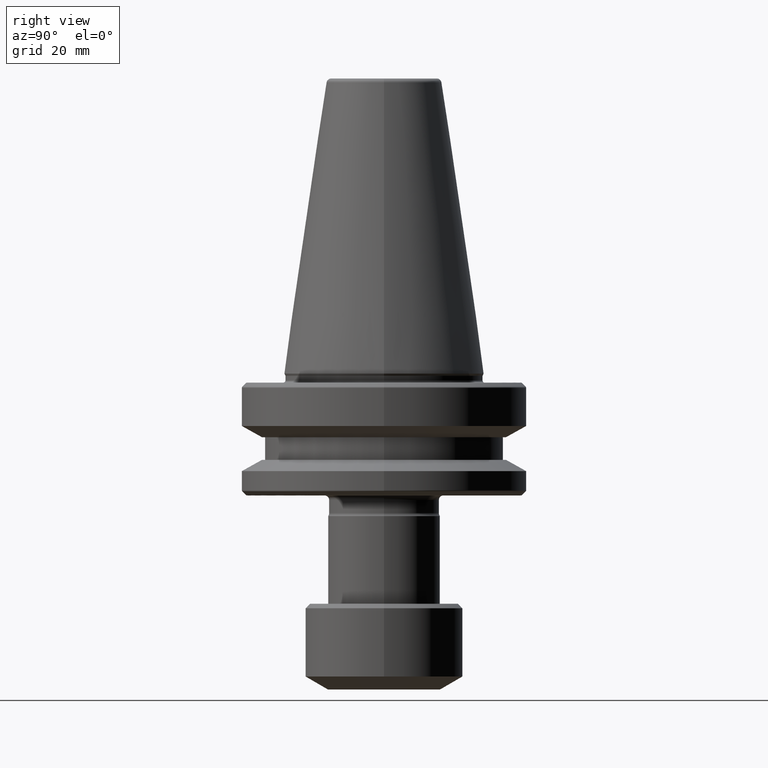
[diagram: clean part render]
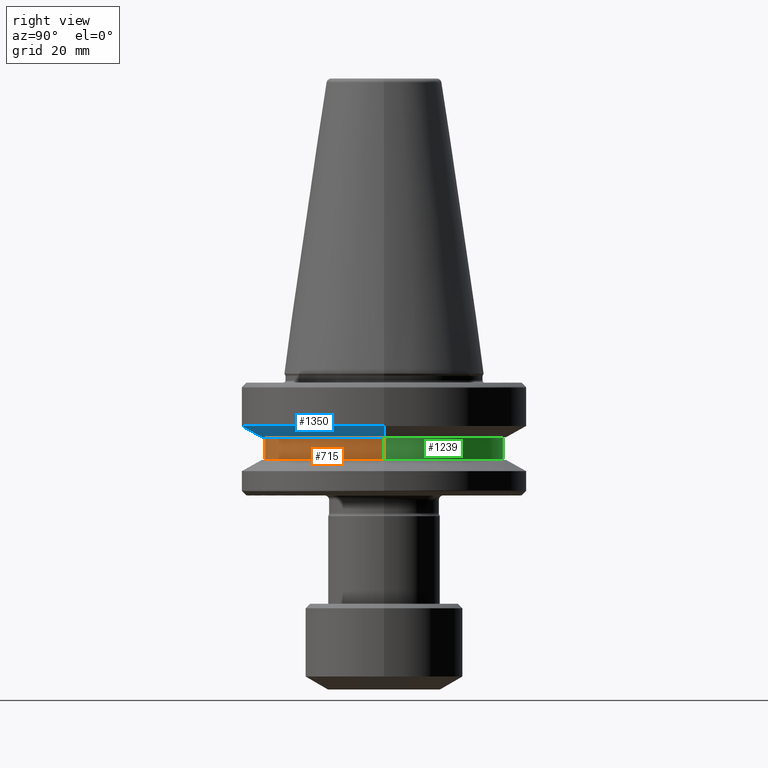
[diagram: same view with three faces highlighted in distinct colors, each labeled with its STEP entity id]
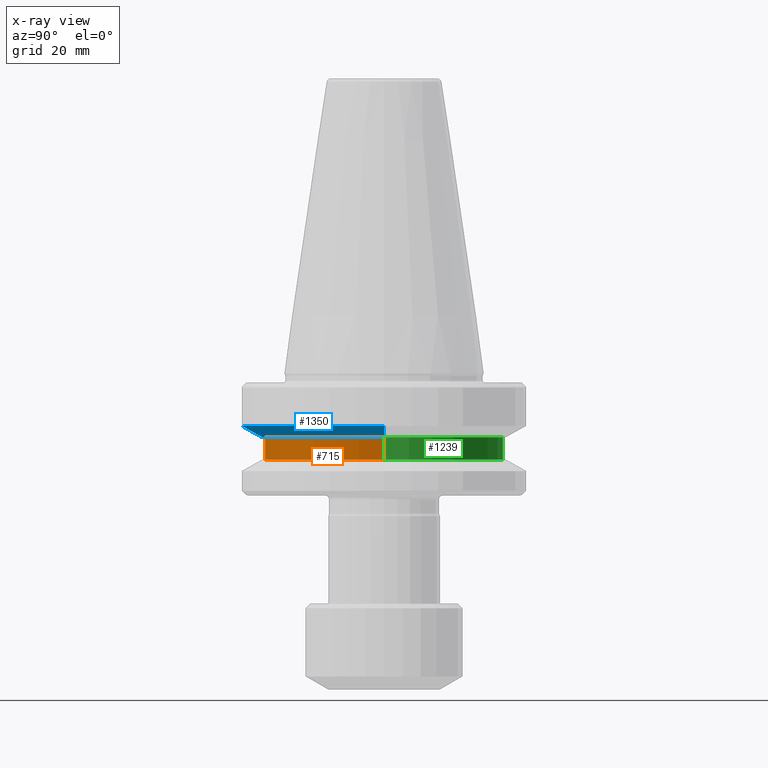
[diagram: x-ray of the same camera — body ghosted, the three highlighted faces saturated]
A machine part, right view with three faces highlighted in distinct colors.
The next image is the same camera in x-ray (body ghosted, the three faces saturated) — at least one of them is partly hidden behind the body in this view.
Their STEP definitions:

[orange] entity #715 — the highlighted cylindrical surface (partial cylindrical patch) has radius 26.5 mm, axis along (-0, -0, 1).
#52 = VERTEX_POINT ( 'NONE', #479 ) ;
#63 = AXIS2_PLACEMENT_3D ( 'NONE', #952, #545, #848 ) ;
#113 = CIRCLE ( 'NONE', #557, 26.50000000000000000 ) ;
#171 = DIRECTION ( 'NONE',  ( -0.0000000000000000000, -0.0000000000000000000, 1.000000000000000000 ) ) ;
#194 = VERTEX_POINT ( 'NONE', #1137 ) ;
#207 = VECTOR ( 'NONE', #565, 1000.000000000000000 ) ;
#212 = CARTESIAN_POINT ( 'NONE',  ( -26.50000000000000000, 3.245314017740485800E-015, 69.75694866325665100 ) ) ;
#259 = ORIENTED_EDGE ( 'NONE', *, *, #1156, .F. ) ;
#322 = EDGE_CURVE ( 'NONE', #1174, #362, #113, .T. ) ;
#328 = ORIENTED_EDGE ( 'NONE', *, *, #378, .T. ) ;
#344 = EDGE_LOOP ( 'NONE', ( #259, #484, #328, #1327 ) ) ;
#362 = VERTEX_POINT ( 'NONE', #995 ) ;
#378 = EDGE_CURVE ( 'NONE', #52, #362, #925, .T. ) ;
#394 = DIRECTION ( 'NONE',  ( -0.0000000000000000000, -0.0000000000000000000, 1.000000000000000000 ) ) ;
#479 = CARTESIAN_POINT ( 'NONE',  ( 26.50000000000000000, 0.0000000000000000000, -19.10000000000000500 ) ) ;
#484 = ORIENTED_EDGE ( 'NONE', *, *, #1394, .T. ) ;
#545 = DIRECTION ( 'NONE',  ( -0.0000000000000000000, -0.0000000000000000000, 1.000000000000000000 ) ) ;
#557 = AXIS2_PLACEMENT_3D ( 'NONE', #948, #171, #762 ) ;
#565 = DIRECTION ( 'NONE',  ( -0.0000000000000000000, -0.0000000000000000000, 1.000000000000000000 ) ) ;
#679 = CYLINDRICAL_SURFACE ( 'NONE', #63, 26.50000000000000000 ) ;
#692 = FACE_OUTER_BOUND ( 'NONE', #344, .T. ) ;
#715 = ADVANCED_FACE ( 'NONE', ( #692 ), #679, .T. ) ;
#762 = DIRECTION ( 'NONE',  ( 1.000000000000000000, 0.0000000000000000000, 0.0000000000000000000 ) ) ;
#817 = CIRCLE ( 'NONE', #1482, 26.50000000000000000 ) ;
#848 = DIRECTION ( 'NONE',  ( 1.000000000000000000, 0.0000000000000000000, 0.0000000000000000000 ) ) ;
#925 = LINE ( 'NONE', #1265, #207 ) ;
#948 = CARTESIAN_POINT ( 'NONE',  ( 0.0000000000000000000, 0.0000000000000000000, -14.10000000000000100 ) ) ;
#952 = CARTESIAN_POINT ( 'NONE',  ( 0.0000000000000000000, 0.0000000000000000000, 69.75694866325665100 ) ) ;
#976 = CARTESIAN_POINT ( 'NONE',  ( -26.50000000000000000, 3.245314017740485800E-015, -14.10000000000000100 ) ) ;
#988 = LINE ( 'NONE', #212, #1393 ) ;
#995 = CARTESIAN_POINT ( 'NONE',  ( 26.50000000000000000, 0.0000000000000000000, -14.10000000000000100 ) ) ;
#1129 = CARTESIAN_POINT ( 'NONE',  ( 0.0000000000000000000, 0.0000000000000000000, -19.10000000000000500 ) ) ;
#1137 = CARTESIAN_POINT ( 'NONE',  ( -26.50000000000000000, 3.245314017740485800E-015, -19.10000000000000500 ) ) ;
#1156 = EDGE_CURVE ( 'NONE', #194, #1174, #988, .T. ) ;
#1174 = VERTEX_POINT ( 'NONE', #976 ) ;
#1235 = DIRECTION ( 'NONE',  ( 1.000000000000000000, 0.0000000000000000000, 0.0000000000000000000 ) ) ;
#1265 = CARTESIAN_POINT ( 'NONE',  ( 26.50000000000000000, 0.0000000000000000000, 69.75694866325665100 ) ) ;
#1298 = DIRECTION ( 'NONE',  ( -0.0000000000000000000, -0.0000000000000000000, 1.000000000000000000 ) ) ;
#1327 = ORIENTED_EDGE ( 'NONE', *, *, #322, .F. ) ;
#1393 = VECTOR ( 'NONE', #1298, 1000.000000000000000 ) ;
#1394 = EDGE_CURVE ( 'NONE', #194, #52, #817, .T. ) ;
#1482 = AXIS2_PLACEMENT_3D ( 'NONE', #1129, #394, #1235 ) ;

[blue] entity #1350 — the highlighted conical surface has half-angle 60 deg.
#22 = EDGE_CURVE ( 'NONE', #206, #421, #39, .T. ) ;
#39 = LINE ( 'NONE', #795, #526 ) ;
#141 = CARTESIAN_POINT ( 'NONE',  ( -31.50000000000000000, 3.857637417314162700E-015, -11.59985799368323700 ) ) ;
#153 = AXIS2_PLACEMENT_3D ( 'NONE', #250, #1127, #1410 ) ;
#162 = ORIENTED_EDGE ( 'NONE', *, *, #187, .T. ) ;
#187 = EDGE_CURVE ( 'NONE', #206, #530, #718, .T. ) ;
#206 = VERTEX_POINT ( 'NONE', #632 ) ;
#229 = ORIENTED_EDGE ( 'NONE', *, *, #22, .F. ) ;
#238 = ORIENTED_EDGE ( 'NONE', *, *, #763, .F. ) ;
#250 = CARTESIAN_POINT ( 'NONE',  ( 0.0000000000000000000, 0.0000000000000000000, -11.59985799368323700 ) ) ;
#266 = EDGE_CURVE ( 'NONE', #530, #619, #536, .T. ) ;
#421 = VERTEX_POINT ( 'NONE', #141 ) ;
#501 = DIRECTION ( 'NONE',  ( 1.000000000000000000, 0.0000000000000000000, 0.0000000000000000000 ) ) ;
#526 = VECTOR ( 'NONE', #614, 1000.000000000000100 ) ;
#530 = VERTEX_POINT ( 'NONE', #944 ) ;
#536 = LINE ( 'NONE', #1081, #1056 ) ;
#550 = EDGE_LOOP ( 'NONE', ( #229, #162, #1352, #238 ) ) ;
#614 = DIRECTION ( 'NONE',  ( -0.8660254037844393700, 1.060575238724907800E-016, 0.4999999999999985000 ) ) ;
#619 = VERTEX_POINT ( 'NONE', #644 ) ;
#632 = CARTESIAN_POINT ( 'NONE',  ( -27.16962701892216000, 3.592478546794604700E-015, -14.10000000000000100 ) ) ;
#644 = CARTESIAN_POINT ( 'NONE',  ( 31.50000000000000000, 0.0000000000000000000, -11.59985799368323700 ) ) ;
#678 = CIRCLE ( 'NONE', #153, 31.50000000000000000 ) ;
#718 = CIRCLE ( 'NONE', #1283, 27.16962701892216000 ) ;
#763 = EDGE_CURVE ( 'NONE', #421, #619, #678, .T. ) ;
#795 = CARTESIAN_POINT ( 'NONE',  ( -31.50000000000000000, 3.857637417314162700E-015, -11.59985799368323700 ) ) ;
#944 = CARTESIAN_POINT ( 'NONE',  ( 27.16962701892216000, 0.0000000000000000000, -14.10000000000000100 ) ) ;
#1045 = DIRECTION ( 'NONE',  ( 1.000000000000000000, 0.0000000000000000000, 0.0000000000000000000 ) ) ;
#1046 = DIRECTION ( 'NONE',  ( -0.0000000000000000000, -0.0000000000000000000, 1.000000000000000000 ) ) ;
#1056 = VECTOR ( 'NONE', #1133, 1000.000000000000100 ) ;
#1081 = CARTESIAN_POINT ( 'NONE',  ( 31.50000000000000000, 0.0000000000000000000, -11.59985799368323700 ) ) ;
#1118 = CARTESIAN_POINT ( 'NONE',  ( 0.0000000000000000000, 0.0000000000000000000, -11.59985799368323700 ) ) ;
#1127 = DIRECTION ( 'NONE',  ( -0.0000000000000000000, -0.0000000000000000000, 1.000000000000000000 ) ) ;
#1133 = DIRECTION ( 'NONE',  ( 0.8660254037844393700, 0.0000000000000000000, 0.4999999999999985000 ) ) ;
#1228 = FACE_OUTER_BOUND ( 'NONE', #550, .T. ) ;
#1242 = AXIS2_PLACEMENT_3D ( 'NONE', #1118, #1317, #501 ) ;
#1283 = AXIS2_PLACEMENT_3D ( 'NONE', #1452, #1046, #1045 ) ;
#1307 = CONICAL_SURFACE ( 'NONE', #1242, 31.50000000000000000, 1.047197551196599400 ) ;
#1317 = DIRECTION ( 'NONE',  ( -0.0000000000000000000, -0.0000000000000000000, 1.000000000000000000 ) ) ;
#1350 = ADVANCED_FACE ( 'NONE', ( #1228 ), #1307, .T. ) ;
#1352 = ORIENTED_EDGE ( 'NONE', *, *, #266, .T. ) ;
#1410 = DIRECTION ( 'NONE',  ( 1.000000000000000000, 0.0000000000000000000, 0.0000000000000000000 ) ) ;
#1452 = CARTESIAN_POINT ( 'NONE',  ( 0.0000000000000000000, 0.0000000000000000000, -14.10000000000000100 ) ) ;

[green] entity #1239 — the highlighted cylindrical surface (partial cylindrical patch) has radius 26.5 mm, axis along (-0, -0, 1).
#40 = CIRCLE ( 'NONE', #1445, 26.50000000000000000 ) ;
#52 = VERTEX_POINT ( 'NONE', #479 ) ;
#123 = EDGE_CURVE ( 'NONE', #52, #194, #40, .T. ) ;
#152 = ORIENTED_EDGE ( 'NONE', *, *, #1156, .T. ) ;
#194 = VERTEX_POINT ( 'NONE', #1137 ) ;
#207 = VECTOR ( 'NONE', #565, 1000.000000000000000 ) ;
#210 = EDGE_LOOP ( 'NONE', ( #1483, #152, #893, #1438 ) ) ;
#212 = CARTESIAN_POINT ( 'NONE',  ( -26.50000000000000000, 3.245314017740485800E-015, 69.75694866325665100 ) ) ;
#224 = CARTESIAN_POINT ( 'NONE',  ( 0.0000000000000000000, 0.0000000000000000000, -14.10000000000000100 ) ) ;
#340 = AXIS2_PLACEMENT_3D ( 'NONE', #224, #1099, #352 ) ;
#348 = CARTESIAN_POINT ( 'NONE',  ( 0.0000000000000000000, 0.0000000000000000000, 69.75694866325665100 ) ) ;
#349 = DIRECTION ( 'NONE',  ( -0.0000000000000000000, -0.0000000000000000000, 1.000000000000000000 ) ) ;
#352 = DIRECTION ( 'NONE',  ( 1.000000000000000000, 0.0000000000000000000, 0.0000000000000000000 ) ) ;
#362 = VERTEX_POINT ( 'NONE', #995 ) ;
#378 = EDGE_CURVE ( 'NONE', #52, #362, #925, .T. ) ;
#401 = CYLINDRICAL_SURFACE ( 'NONE', #612, 26.50000000000000000 ) ;
#479 = CARTESIAN_POINT ( 'NONE',  ( 26.50000000000000000, 0.0000000000000000000, -19.10000000000000500 ) ) ;
#565 = DIRECTION ( 'NONE',  ( -0.0000000000000000000, -0.0000000000000000000, 1.000000000000000000 ) ) ;
#612 = AXIS2_PLACEMENT_3D ( 'NONE', #348, #867, #1092 ) ;
#668 = CARTESIAN_POINT ( 'NONE',  ( 0.0000000000000000000, 0.0000000000000000000, -19.10000000000000500 ) ) ;
#867 = DIRECTION ( 'NONE',  ( -0.0000000000000000000, -0.0000000000000000000, 1.000000000000000000 ) ) ;
#890 = DIRECTION ( 'NONE',  ( 1.000000000000000000, 0.0000000000000000000, 0.0000000000000000000 ) ) ;
#893 = ORIENTED_EDGE ( 'NONE', *, *, #1222, .F. ) ;
#925 = LINE ( 'NONE', #1265, #207 ) ;
#976 = CARTESIAN_POINT ( 'NONE',  ( -26.50000000000000000, 3.245314017740485800E-015, -14.10000000000000100 ) ) ;
#988 = LINE ( 'NONE', #212, #1393 ) ;
#995 = CARTESIAN_POINT ( 'NONE',  ( 26.50000000000000000, 0.0000000000000000000, -14.10000000000000100 ) ) ;
#1092 = DIRECTION ( 'NONE',  ( 1.000000000000000000, 0.0000000000000000000, 0.0000000000000000000 ) ) ;
#1099 = DIRECTION ( 'NONE',  ( -0.0000000000000000000, -0.0000000000000000000, 1.000000000000000000 ) ) ;
#1137 = CARTESIAN_POINT ( 'NONE',  ( -26.50000000000000000, 3.245314017740485800E-015, -19.10000000000000500 ) ) ;
#1156 = EDGE_CURVE ( 'NONE', #194, #1174, #988, .T. ) ;
#1174 = VERTEX_POINT ( 'NONE', #976 ) ;
#1222 = EDGE_CURVE ( 'NONE', #362, #1174, #1372, .T. ) ;
#1239 = ADVANCED_FACE ( 'NONE', ( #1345 ), #401, .T. ) ;
#1265 = CARTESIAN_POINT ( 'NONE',  ( 26.50000000000000000, 0.0000000000000000000, 69.75694866325665100 ) ) ;
#1298 = DIRECTION ( 'NONE',  ( -0.0000000000000000000, -0.0000000000000000000, 1.000000000000000000 ) ) ;
#1345 = FACE_OUTER_BOUND ( 'NONE', #210, .T. ) ;
#1372 = CIRCLE ( 'NONE', #340, 26.50000000000000000 ) ;
#1393 = VECTOR ( 'NONE', #1298, 1000.000000000000000 ) ;
#1438 = ORIENTED_EDGE ( 'NONE', *, *, #378, .F. ) ;
#1445 = AXIS2_PLACEMENT_3D ( 'NONE', #668, #349, #890 ) ;
#1483 = ORIENTED_EDGE ( 'NONE', *, *, #123, .T. ) ;